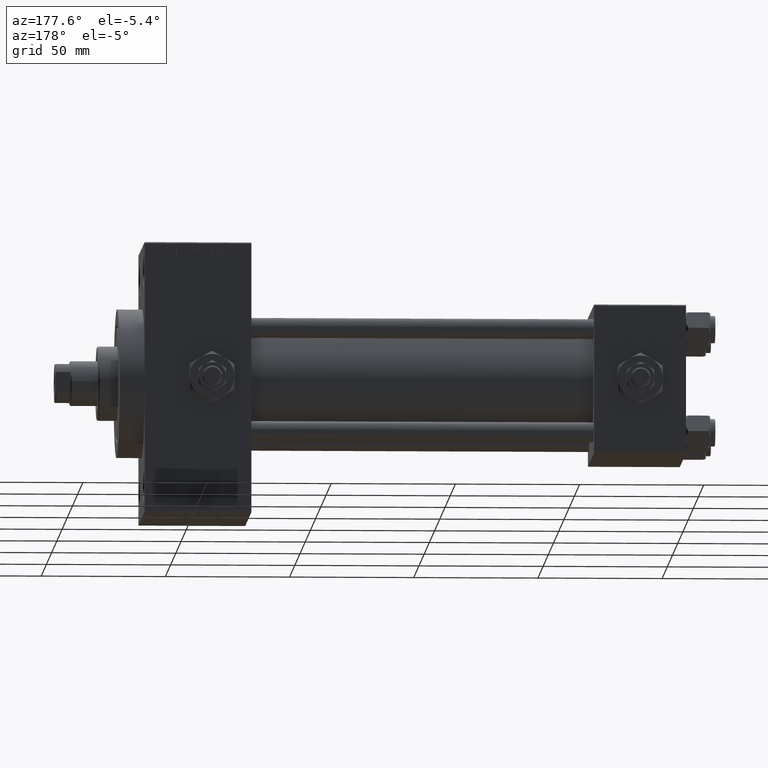
[diagram: clean part render]
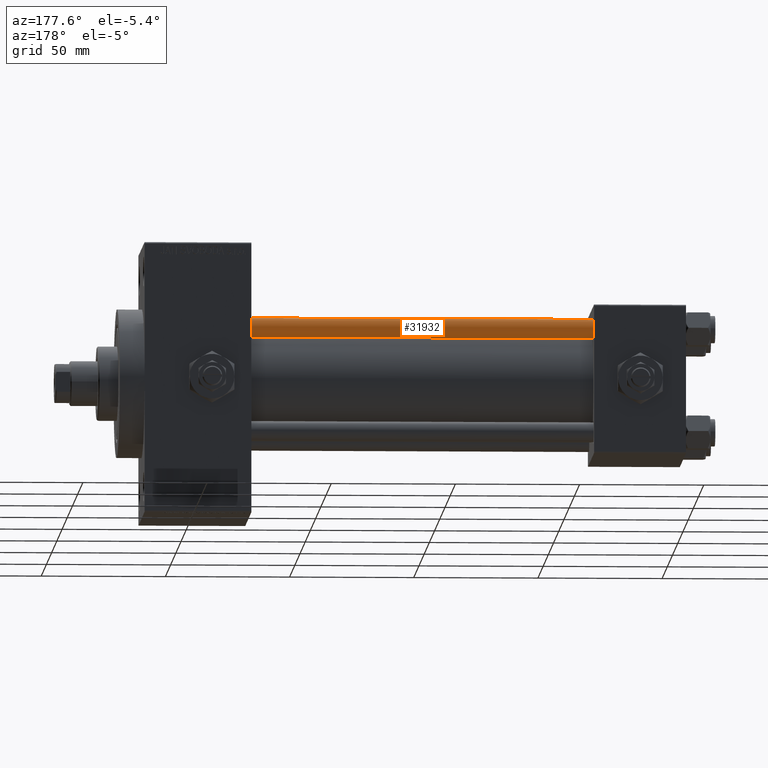
[diagram: same view with one face highlighted and labeled with its STEP entity id]
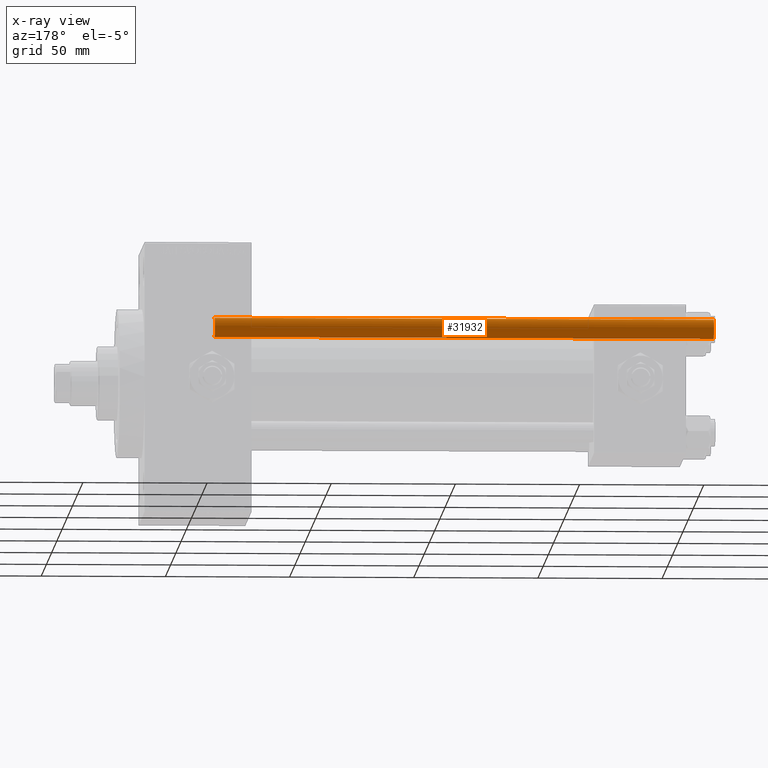
[diagram: x-ray of the same camera — body ghosted, the highlighted face saturated]
A machine part, auxiliary view. The second image highlights one B-rep face of the part: STEP entity #31932.
The next image is the same camera in x-ray: the body ghosted, the highlighted face saturated — about 0% of this face is hidden behind the body in this view.
In plain terms, the highlighted cylindrical surface (edge-blend (fillet) strip) has radius 4 mm, axis along (-1, -0, 0).
Its self-contained STEP definition (entity closure, byte-faithful):
#1226 = CARTESIAN_POINT ( 'NONE',  ( 0.000000000000000000, 0.000000000000000000, 202.0000000000000000 ) ) ;
#1480 = CYLINDRICAL_SURFACE ( 'NONE', #7616, 4.000000000000000000 ) ;
#1617 = ORIENTED_EDGE ( 'NONE', *, *, #7759, .T. ) ;
#6934 = EDGE_LOOP ( 'NONE', ( #32972, #7963, #1617, #47425 ) ) ;
#7370 = AXIS2_PLACEMENT_3D ( 'NONE', #26897, #8624, #42653 ) ;
#7616 = AXIS2_PLACEMENT_3D ( 'NONE', #1226, #43292, #8504 ) ;
#7759 = EDGE_CURVE ( 'NONE', #14688, #46538, #37458, .T. ) ;
#7963 = ORIENTED_EDGE ( 'NONE', *, *, #48045, .T. ) ;
#8504 = DIRECTION ( 'NONE',  ( -1.000000000000000000, 0.000000000000000000, 0.000000000000000000 ) ) ;
#8624 = DIRECTION ( 'NONE',  ( 0.000000000000000000, 0.000000000000000000, -1.000000000000000000 ) ) ;
#8968 = DIRECTION ( 'NONE',  ( 1.000000000000000000, 0.000000000000000000, 0.000000000000000000 ) ) ;
#11984 = CARTESIAN_POINT ( 'NONE',  ( 0.000000000000000000, 0.000000000000000000, 0.5000000000000004441 ) ) ;
#12202 = CARTESIAN_POINT ( 'NONE',  ( 4.000000000000000000, 4.898587196589412829E-16, 202.0000000000000000 ) ) ;
#14636 = VERTEX_POINT ( 'NONE', #41360 ) ;
#14688 = VERTEX_POINT ( 'NONE', #45617 ) ;
#19179 = DIRECTION ( 'NONE',  ( -0.000000000000000000, -0.000000000000000000, -1.000000000000000000 ) ) ;
#19479 = DIRECTION ( 'NONE',  ( -0.000000000000000000, -0.000000000000000000, 1.000000000000000000 ) ) ;
#19918 = LINE ( 'NONE', #35197, #43398 ) ;
#22780 = DIRECTION ( 'NONE',  ( -0.000000000000000000, -0.000000000000000000, -1.000000000000000000 ) ) ;
#23371 = CIRCLE ( 'NONE', #7370, 4.000000000000000000 ) ;
#23439 = EDGE_CURVE ( 'NONE', #42286, #46538, #19918, .T. ) ;
#24458 = LINE ( 'NONE', #12202, #35158 ) ;
#25444 = EDGE_CURVE ( 'NONE', #42286, #14636, #23371, .T. ) ;
#25954 = CARTESIAN_POINT ( 'NONE',  ( -4.000000000000000000, 0.000000000000000000, 201.5000000000000000 ) ) ;
#26897 = CARTESIAN_POINT ( 'NONE',  ( 0.000000000000000000, 0.000000000000000000, 201.5000000000000000 ) ) ;
#31932 = ADVANCED_FACE ( 'NONE', ( #38066 ), #1480, .T. ) ;
#32972 = ORIENTED_EDGE ( 'NONE', *, *, #25444, .T. ) ;
#35158 = VECTOR ( 'NONE', #22780, 1000.000000000000000 ) ;
#35197 = CARTESIAN_POINT ( 'NONE',  ( -4.000000000000000000, 0.000000000000000000, 202.0000000000000000 ) ) ;
#36363 = CARTESIAN_POINT ( 'NONE',  ( -4.000000000000000000, 0.000000000000000000, 0.5000000000000004441 ) ) ;
#37458 = CIRCLE ( 'NONE', #47832, 4.000000000000000000 ) ;
#38066 = FACE_OUTER_BOUND ( 'NONE', #6934, .T. ) ;
#41360 = CARTESIAN_POINT ( 'NONE',  ( 4.000000000000000000, 4.898587196589412829E-16, 201.5000000000000000 ) ) ;
#42286 = VERTEX_POINT ( 'NONE', #25954 ) ;
#42653 = DIRECTION ( 'NONE',  ( 1.000000000000000000, 0.000000000000000000, 0.000000000000000000 ) ) ;
#43292 = DIRECTION ( 'NONE',  ( -0.000000000000000000, -0.000000000000000000, -1.000000000000000000 ) ) ;
#43398 = VECTOR ( 'NONE', #19179, 1000.000000000000000 ) ;
#45617 = CARTESIAN_POINT ( 'NONE',  ( 4.000000000000000000, 4.898587196589412829E-16, 0.5000000000000004441 ) ) ;
#46538 = VERTEX_POINT ( 'NONE', #36363 ) ;
#47425 = ORIENTED_EDGE ( 'NONE', *, *, #23439, .F. ) ;
#47832 = AXIS2_PLACEMENT_3D ( 'NONE', #11984, #19479, #8968 ) ;
#48045 = EDGE_CURVE ( 'NONE', #14636, #14688, #24458, .T. ) ;